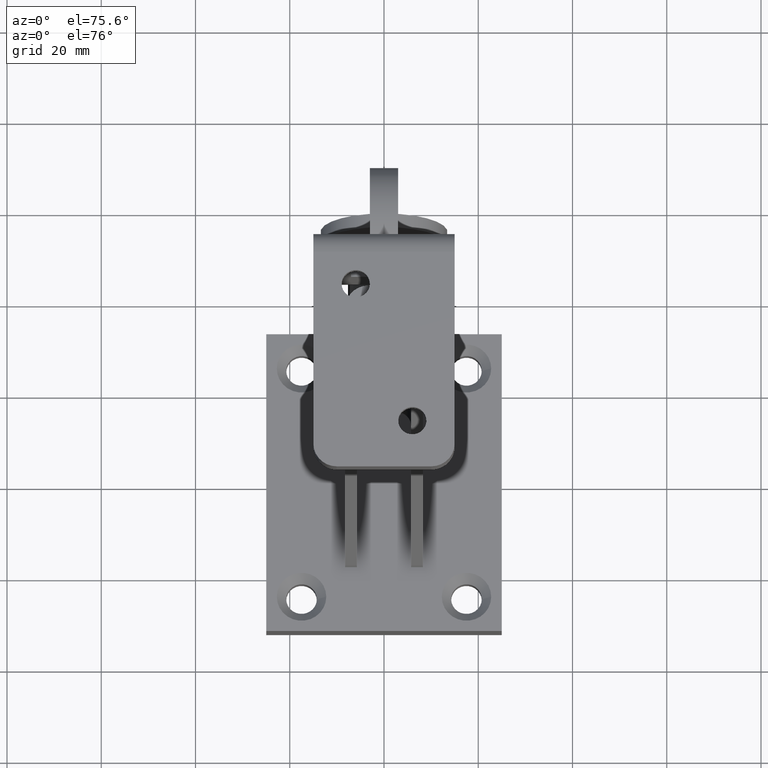
[diagram: clean part render]
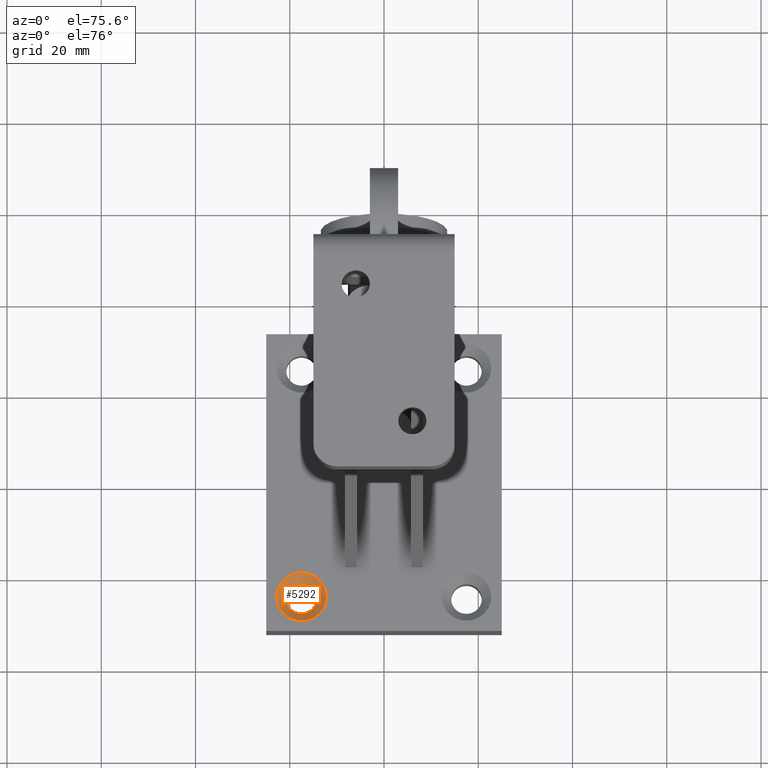
[diagram: same view with one face highlighted and labeled with its STEP entity id]
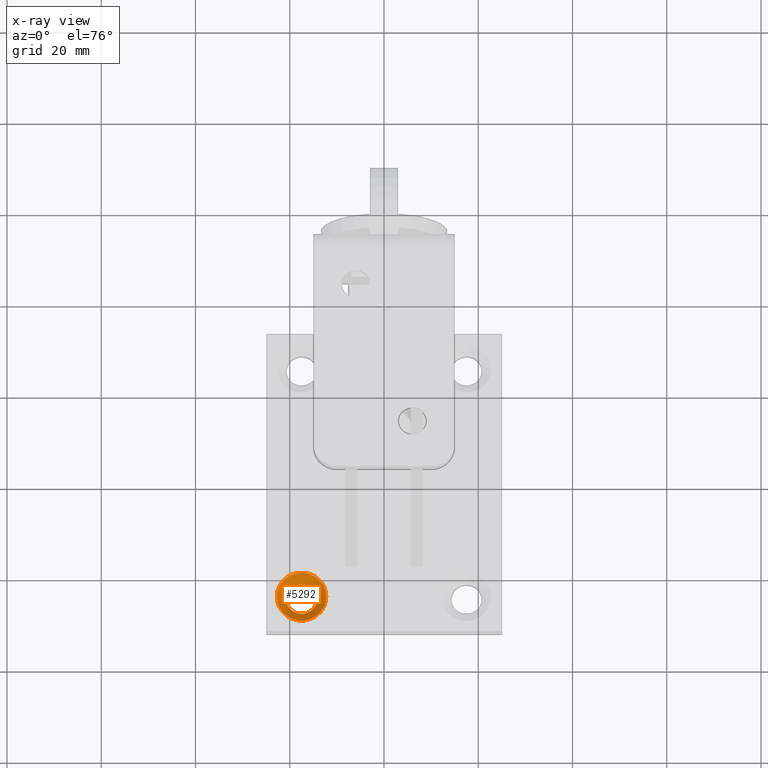
[diagram: x-ray of the same camera — body ghosted, the highlighted face saturated]
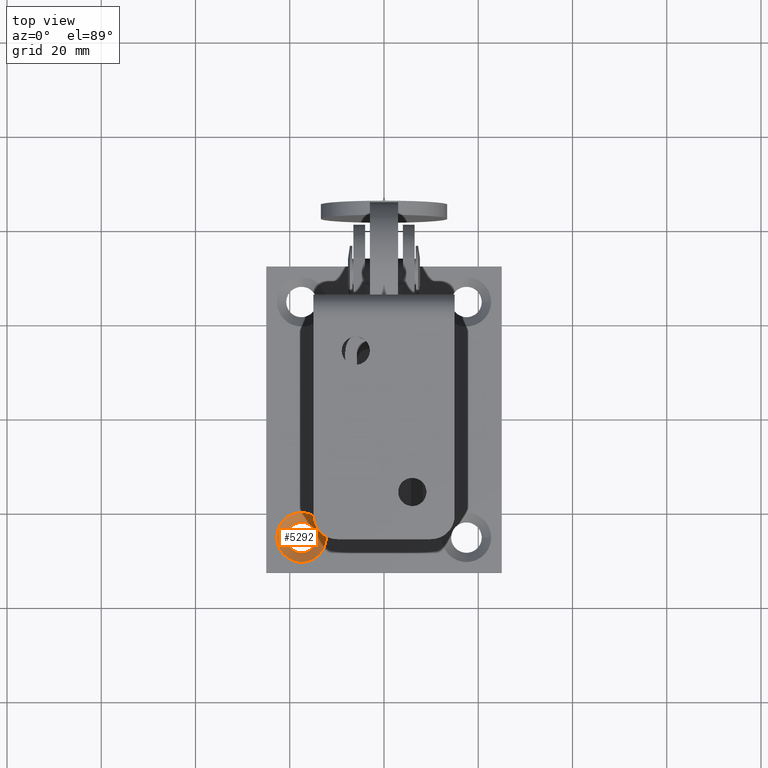
[diagram: same view with one face highlighted and labeled with its STEP entity id]
A machine part, auxiliary view. The second image highlights one B-rep face of the part: STEP entity #5292.
The next image is the same camera in x-ray: the body ghosted, the highlighted face saturated — about 0% of this face is hidden behind the body in this view.
A second angle (top view) of the same face is appended — the face is thin or edge-on in the first view.
In plain terms, the highlighted conical surface has half-angle 45 deg.
Its self-contained STEP definition (entity closure, byte-faithful):
#1493 = EDGE_CURVE ( 'NONE', #12554, #12554, #2727, .T. ) ;
#1941 = DIRECTION ( 'NONE',  ( 1.000000000000000000, 0.0000000000000000000, 0.0000000000000000000 ) ) ;
#2727 = CIRCLE ( 'NONE', #4955, 5.250000000000032000 ) ;
#3513 = EDGE_LOOP ( 'NONE', ( #5341 ) ) ;
#4736 = DIRECTION ( 'NONE',  ( 0.0000000000000000000, 0.0000000000000000000, 1.000000000000000000 ) ) ;
#4955 = AXIS2_PLACEMENT_3D ( 'NONE', #10314, #5001, #1941 ) ;
#5001 = DIRECTION ( 'NONE',  ( 0.0000000000000000000, -0.0000000000000000000, -1.000000000000000000 ) ) ;
#5292 = ADVANCED_FACE ( 'NONE', ( #11002, #7348 ), #11496, .F. ) ;
#5341 = ORIENTED_EDGE ( 'NONE', *, *, #6839, .F. ) ;
#6348 = AXIS2_PLACEMENT_3D ( 'NONE', #8761, #8806, #6640 ) ;
#6640 = DIRECTION ( 'NONE',  ( 1.000000000000000000, 0.0000000000000000000, 0.0000000000000000000 ) ) ;
#6839 = EDGE_CURVE ( 'NONE', #13052, #13052, #9164, .T. ) ;
#6868 = CARTESIAN_POINT ( 'NONE',  ( -14.24999999999999500, -25.00000000000001100, 1.499999999999970900 ) ) ;
#7348 = FACE_BOUND ( 'NONE', #3513, .T. ) ;
#8761 = CARTESIAN_POINT ( 'NONE',  ( -17.49999999999999600, -25.00000000000001100, 1.499999999999970900 ) ) ;
#8806 = DIRECTION ( 'NONE',  ( 0.0000000000000000000, 0.0000000000000000000, 1.000000000000000000 ) ) ;
#8903 = CARTESIAN_POINT ( 'NONE',  ( -17.49999999999999600, -25.00000000000001100, 1.499999999999970900 ) ) ;
#9164 = CIRCLE ( 'NONE', #6348, 3.249999999999999600 ) ;
#10114 = DIRECTION ( 'NONE',  ( 1.000000000000000000, 0.0000000000000000000, 0.0000000000000000000 ) ) ;
#10314 = CARTESIAN_POINT ( 'NONE',  ( -17.49999999999999600, -25.00000000000001100, 3.500000000000000000 ) ) ;
#10541 = ORIENTED_EDGE ( 'NONE', *, *, #1493, .F. ) ;
#11002 = FACE_OUTER_BOUND ( 'NONE', #12204, .T. ) ;
#11496 = CONICAL_SURFACE ( 'NONE', #13318, 3.249999999999999600, 0.7853981633974490600 ) ;
#12204 = EDGE_LOOP ( 'NONE', ( #10541 ) ) ;
#12554 = VERTEX_POINT ( 'NONE', #13330 ) ;
#13052 = VERTEX_POINT ( 'NONE', #6868 ) ;
#13318 = AXIS2_PLACEMENT_3D ( 'NONE', #8903, #4736, #10114 ) ;
#13330 = CARTESIAN_POINT ( 'NONE',  ( -12.24999999999996300, -25.00000000000001100, 3.500000000000000000 ) ) ;